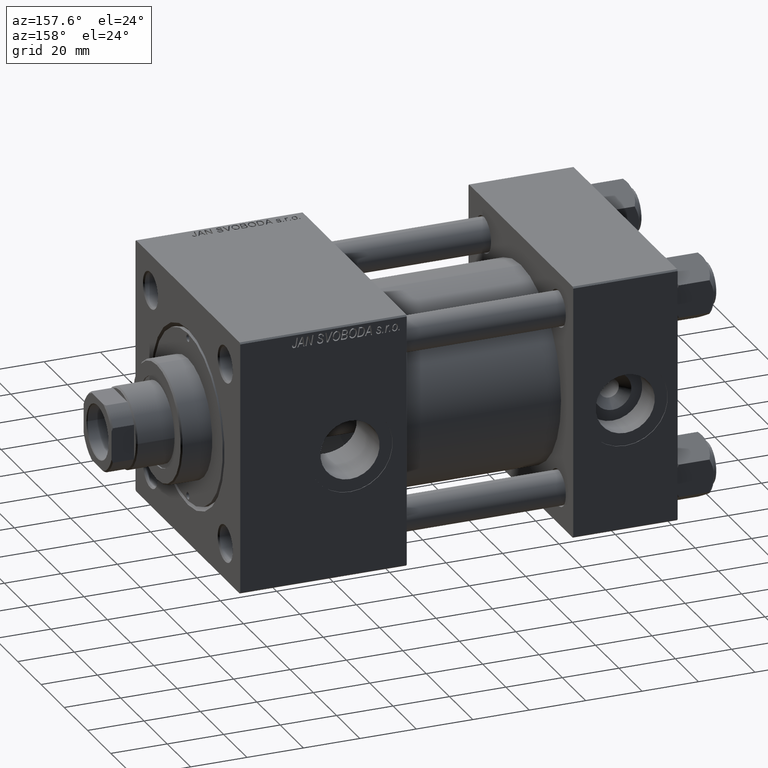
[diagram: clean part render]
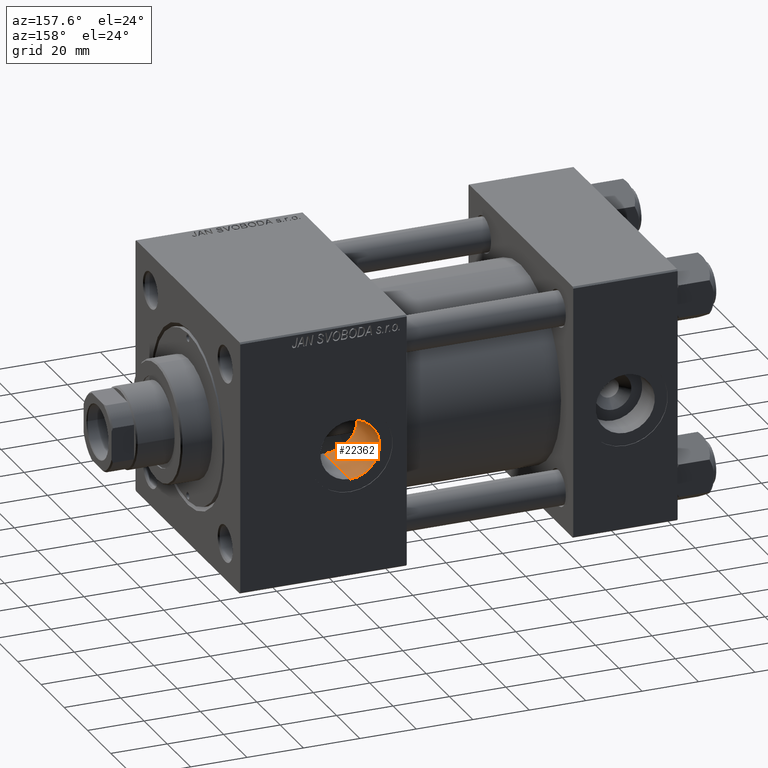
[diagram: same view with one face highlighted and labeled with its STEP entity id]
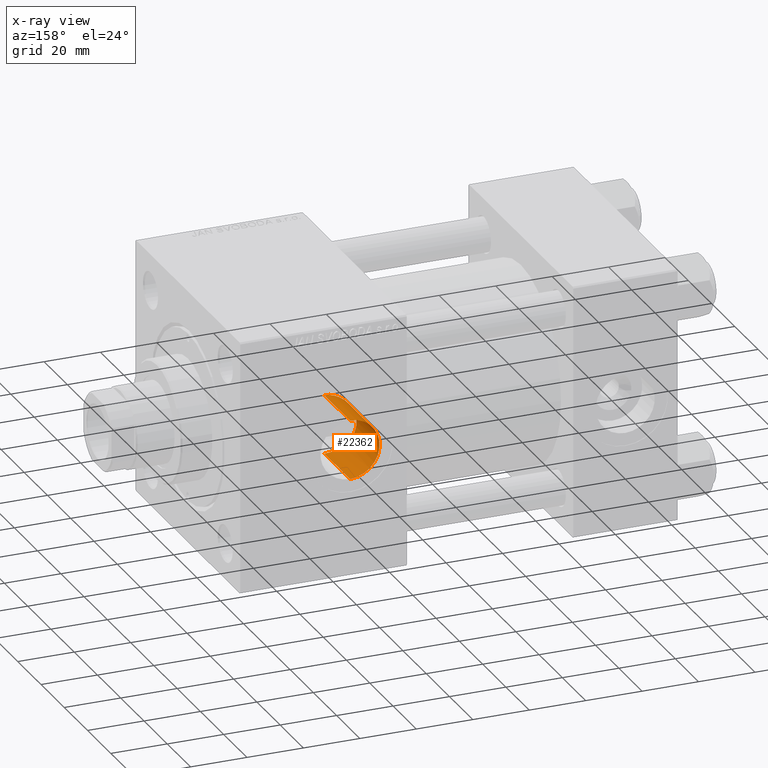
[diagram: x-ray of the same camera — body ghosted, the highlighted face saturated]
A machine part, auxiliary view. The second image highlights one B-rep face of the part: STEP entity #22362.
The next image is the same camera in x-ray: the body ghosted, the highlighted face saturated — about 0% of this face is hidden behind the body in this view.
In plain terms, the highlighted cylindrical surface (edge-blend (fillet) strip) has radius 10.48 mm, axis along (0, 1, 0).
Its self-contained STEP definition (entity closure, byte-faithful):
#184 = VECTOR ( 'NONE', #39532, 1000.000000000000000 ) ;
#1090 = CARTESIAN_POINT ( 'NONE',  ( 105.5202219243777364, 24.99990696930468914, -0.7020592370721171482 ) ) ;
#1340 = CARTESIAN_POINT ( 'NONE',  ( 112.6000436906344930, 22.94823602494485115, -9.919209866290810140 ) ) ;
#1594 = CARTESIAN_POINT ( 'NONE',  ( 109.0758525530452800, 23.72565358630828669, 7.895767310681550022 ) ) ;
#1846 = CARTESIAN_POINT ( 'NONE',  ( 107.6900300022859653, 24.16988760624360566, -6.394633543806203413 ) ) ;
#2006 = CARTESIAN_POINT ( 'NONE',  ( 116.0000000000000000, 44.80000000000001847, 10.48000000000000043 ) ) ;
#2017 = DIRECTION ( 'NONE',  ( -0.000000000000000000, 1.000000000000000000, -0.000000000000000000 ) ) ;
#2100 = CARTESIAN_POINT ( 'NONE',  ( 106.1992050399645393, 24.72266741087924657, 3.727330997008741154 ) ) ;
#2209 = AXIS2_PLACEMENT_3D ( 'NONE', #7741, #23286, #46216 ) ;
#3269 = DIRECTION ( 'NONE',  ( -0.000000000000000000, 1.000000000000000000, -0.000000000000000000 ) ) ;
#4641 = LINE ( 'NONE', #24252, #184 ) ;
#4914 = CARTESIAN_POINT ( 'NONE',  ( 113.2625725609531031, 22.85946943249185637, -10.12210048819257757 ) ) ;
#5164 = CARTESIAN_POINT ( 'NONE',  ( 112.2769050068437053, 22.99857768367994737, -9.802338176841917772 ) ) ;
#5640 = VERTEX_POINT ( 'NONE', #13284 ) ;
#5672 = CARTESIAN_POINT ( 'NONE',  ( 105.8774204008529125, 24.85211448620741592, -2.735702537687464186 ) ) ;
#7741 = CARTESIAN_POINT ( 'NONE',  ( 116.0000000000000000, 44.80000000000001847, 0.000000000000000000 ) ) ;
#8068 = VERTEX_POINT ( 'NONE', #40635 ) ;
#8989 = CARTESIAN_POINT ( 'NONE',  ( 110.7388075418619167, 23.29260463244819590, 9.089559278086982275 ) ) ;
#9244 = CARTESIAN_POINT ( 'NONE',  ( 107.4914286754354862, 24.23909680393989063, 6.127889787572176949 ) ) ;
#9496 = CARTESIAN_POINT ( 'NONE',  ( 114.6214610596254033, 22.72910592596695878, 10.41201292843505399 ) ) ;
#9753 = CARTESIAN_POINT ( 'NONE',  ( 106.0806528163204376, 24.77003135787058241, 3.399521362015801795 ) ) ;
#12806 = CARTESIAN_POINT ( 'NONE',  ( 114.6166885166040714, 22.72945378449816189, -10.41125041824599151 ) ) ;
#13056 = CARTESIAN_POINT ( 'NONE',  ( 109.0691750376469287, 23.72760602978986455, -7.889944006337748839 ) ) ;
#13284 = CARTESIAN_POINT ( 'NONE',  ( 115.9999999999999574, 22.69734786269092908, -10.48000000000001286 ) ) ;
#13306 = CARTESIAN_POINT ( 'NONE',  ( 105.5198898269284484, 25.00004618454965666, 0.3460486699088876072 ) ) ;
#13565 = CARTESIAN_POINT ( 'NONE',  ( 107.4852564452334889, 24.24127047932947221, -6.119244249603054797 ) ) ;
#13702 = B_SPLINE_CURVE_WITH_KNOTS ( 'NONE', 3,
 ( #25027, #39804, #12806, #28343, #4914, #1340, #5164, #36748, #44645, #17143, #13056, #48477, #28596, #1846, #13565, #20470, #48724, #21478, #40568, #5672, #37004, #17399, #1090, #13306, #32179, #44138, #29100, #25279, #32931, #9753, #2100, #24526, #16894, #9244, #17651, #47961, #40816, #1594, #13823, #8989, #33181, #16644, #47710, #43639, #43886, #9496, #40052, #20721 ),
 .UNSPECIFIED., .F., .F.,
 ( 4, 2, 2, 2, 2, 2, 2, 2, 2, 2, 2, 2, 2, 2, 2, 2, 2, 2, 2, 2, 2, 2, 2, 4 ),
 ( 0.01463821909121441542, 0.01670930280020108474, 0.01774484465469440206, 0.01878038650918771590, 0.02085147021817438523, 0.02292255392716105455, 0.02395809578165437534, 0.02499363763614769612, 0.02706472134513433422, 0.02810026319962765501, 0.02913580505412097579, 0.03120688876310761389, 0.03224243061760093121, 0.03327797247209425546, 0.03431351432658757972, 0.03534905618108089703, 0.03742013989006751778, 0.03845568174456083510, 0.03949122359905414548, 0.04156230730804073847, 0.04363339101702734535, 0.04466893287152064185, 0.04570447472601393835, 0.04777555843500053134 ),
 .UNSPECIFIED. ) ;
#13823 = CARTESIAN_POINT ( 'NONE',  ( 109.5996881253369537, 23.57603182418388599, 8.326838647318266950 ) ) ;
#16635 = ORIENTED_EDGE ( 'NONE', *, *, #48609, .T. ) ;
#16644 = CARTESIAN_POINT ( 'NONE',  ( 112.2810024023067257, 22.99792823106282214, 9.803852027551149817 ) ) ;
#16870 = CIRCLE ( 'NONE', #2209, 10.48000000000000043 ) ;
#16894 = CARTESIAN_POINT ( 'NONE',  ( 106.9205644474328949, 24.44339300292596917, 5.278250371298494059 ) ) ;
#17143 = CARTESIAN_POINT ( 'NONE',  ( 109.5910252885425109, 23.57840781445655409, -8.320120710421930355 ) ) ;
#17399 = CARTESIAN_POINT ( 'NONE',  ( 105.5896143113014602, 24.97059224946895739, -1.388621070306799821 ) ) ;
#17651 = CARTESIAN_POINT ( 'NONE',  ( 107.6971979191698239, 24.16742604129798266, 6.403892675369895038 ) ) ;
#20216 = VERTEX_POINT ( 'NONE', #32106 ) ;
#20470 = CARTESIAN_POINT ( 'NONE',  ( 106.9171465358876389, 24.44468804556172259, -5.272058887039591468 ) ) ;
#20721 = CARTESIAN_POINT ( 'NONE',  ( 116.0000000000000000, 22.69734786269092197, 10.48000000000000043 ) ) ;
#21321 = VERTEX_POINT ( 'NONE', #2006 ) ;
#21398 = CARTESIAN_POINT ( 'NONE',  ( 116.0000000000000000, -29.64191626734007201, 10.48000000000000043 ) ) ;
#21478 = CARTESIAN_POINT ( 'NONE',  ( 106.1986316166709372, 24.72289697108948303, -3.725725694189060633 ) ) ;
#22362 = ADVANCED_FACE ( 'NONE', ( #34336 ), #50382, .F. ) ;
#23286 = DIRECTION ( 'NONE',  ( 0.000000000000000000, 1.000000000000000000, 0.000000000000000000 ) ) ;
#24252 = CARTESIAN_POINT ( 'NONE',  ( 116.0000000000000000, -29.64191626734007201, -10.48000000000000043 ) ) ;
#24526 = CARTESIAN_POINT ( 'NONE',  ( 106.5972116635182658, 24.56669364692478297, 4.678748159390214489 ) ) ;
#25027 = CARTESIAN_POINT ( 'NONE',  ( 115.9999999999999574, 22.69734786269092908, -10.48000000000001286 ) ) ;
#25193 = LINE ( 'NONE', #21398, #37589 ) ;
#25279 = CARTESIAN_POINT ( 'NONE',  ( 105.7934469296605471, 24.88653244420935096, 2.403216301759345530 ) ) ;
#28343 = CARTESIAN_POINT ( 'NONE',  ( 113.6006309434185511, 22.82132339589591652, -10.20748497981750269 ) ) ;
#28596 = CARTESIAN_POINT ( 'NONE',  ( 108.1238065727191042, 24.02420213949847394, -6.921886781690125723 ) ) ;
#29100 = CARTESIAN_POINT ( 'NONE',  ( 105.6576090084523969, 24.94255044980511471, 1.727461359525263473 ) ) ;
#29503 = EDGE_LOOP ( 'NONE', ( #47218, #16635, #40471, #47458 ) ) ;
#30029 = DIRECTION ( 'NONE',  ( 0.000000000000000000, 0.000000000000000000, 1.000000000000000000 ) ) ;
#31408 = EDGE_CURVE ( 'NONE', #20216, #21321, #16870, .T. ) ;
#32106 = CARTESIAN_POINT ( 'NONE',  ( 116.0000000000000000, 44.80000000000001847, -10.48000000000000043 ) ) ;
#32179 = CARTESIAN_POINT ( 'NONE',  ( 105.5374198107919170, 24.99268303089188592, 0.6963761674250767975 ) ) ;
#32931 = CARTESIAN_POINT ( 'NONE',  ( 105.8779669537605628, 24.85189244119417040, 2.737634207123015972 ) ) ;
#33181 = CARTESIAN_POINT ( 'NONE',  ( 111.3377099006113014, 23.16297019228597875, 9.410509118438316278 ) ) ;
#34336 = FACE_OUTER_BOUND ( 'NONE', #29503, .T. ) ;
#36748 = CARTESIAN_POINT ( 'NONE',  ( 111.3305262906433768, 23.16436360660825500, -9.407119406203948486 ) ) ;
#37004 = CARTESIAN_POINT ( 'NONE',  ( 105.7929659686117105, 24.88673000804575253, -2.401115563268500619 ) ) ;
#37589 = VECTOR ( 'NONE', #2017, 1000.000000000000000 ) ;
#38540 = EDGE_CURVE ( 'NONE', #5640, #8068, #13702, .T. ) ;
#39532 = DIRECTION ( 'NONE',  ( -0.000000000000000000, 1.000000000000000000, -0.000000000000000000 ) ) ;
#39804 = CARTESIAN_POINT ( 'NONE',  ( 115.3034659601953962, 22.69734786269090776, -10.47999999999999332 ) ) ;
#40052 = CARTESIAN_POINT ( 'NONE',  ( 115.3073892563825495, 22.69734786269092552, 10.48000000000000043 ) ) ;
#40471 = ORIENTED_EDGE ( 'NONE', *, *, #31408, .T. ) ;
#40568 = CARTESIAN_POINT ( 'NONE',  ( 106.0804400412437190, 24.77011599629383909, -3.398972836081203930 ) ) ;
#40635 = CARTESIAN_POINT ( 'NONE',  ( 116.0000000000000000, 22.69734786269092197, 10.48000000000000043 ) ) ;
#40816 = CARTESIAN_POINT ( 'NONE',  ( 108.3583976685860080, 23.94811038994633279, 7.179864457733689420 ) ) ;
#41309 = AXIS2_PLACEMENT_3D ( 'NONE', #50134, #3269, #30029 ) ;
#43639 = CARTESIAN_POINT ( 'NONE',  ( 113.2628663816418992, 22.85945295365116436, 10.12213220648006029 ) ) ;
#43886 = CARTESIAN_POINT ( 'NONE',  ( 113.6024807966723102, 22.82111456472381050, 10.20795265357759973 ) ) ;
#44138 = CARTESIAN_POINT ( 'NONE',  ( 105.6062911791970578, 24.96393005755822259, 1.386124428227904826 ) ) ;
#44209 = EDGE_CURVE ( 'NONE', #8068, #21321, #25193, .T. ) ;
#44645 = CARTESIAN_POINT ( 'NONE',  ( 110.7282494435932989, 23.29501474869027788, -9.083392073400762712 ) ) ;
#46216 = DIRECTION ( 'NONE',  ( 0.000000000000000000, 0.000000000000000000, 1.000000000000000000 ) ) ;
#47218 = ORIENTED_EDGE ( 'NONE', *, *, #38540, .F. ) ;
#47458 = ORIENTED_EDGE ( 'NONE', *, *, #44209, .F. ) ;
#47710 = CARTESIAN_POINT ( 'NONE',  ( 112.6029776176335560, 22.94782015708121747, 9.920166318359219915 ) ) ;
#47961 = CARTESIAN_POINT ( 'NONE',  ( 108.1304464638024427, 24.02202805608322222, 6.929393258577156267 ) ) ;
#48477 = CARTESIAN_POINT ( 'NONE',  ( 108.3518897779276529, 23.95018848110602860, -7.172942060376100493 ) ) ;
#48609 = EDGE_CURVE ( 'NONE', #5640, #20216, #4641, .T. ) ;
#48724 = CARTESIAN_POINT ( 'NONE',  ( 106.5951675388459705, 24.56748508602188608, -4.674328070843617233 ) ) ;
#50134 = CARTESIAN_POINT ( 'NONE',  ( 116.0000000000000000, -29.64191626734007201, 0.000000000000000000 ) ) ;
#50382 = CYLINDRICAL_SURFACE ( 'NONE', #41309, 10.48000000000000043 ) ;